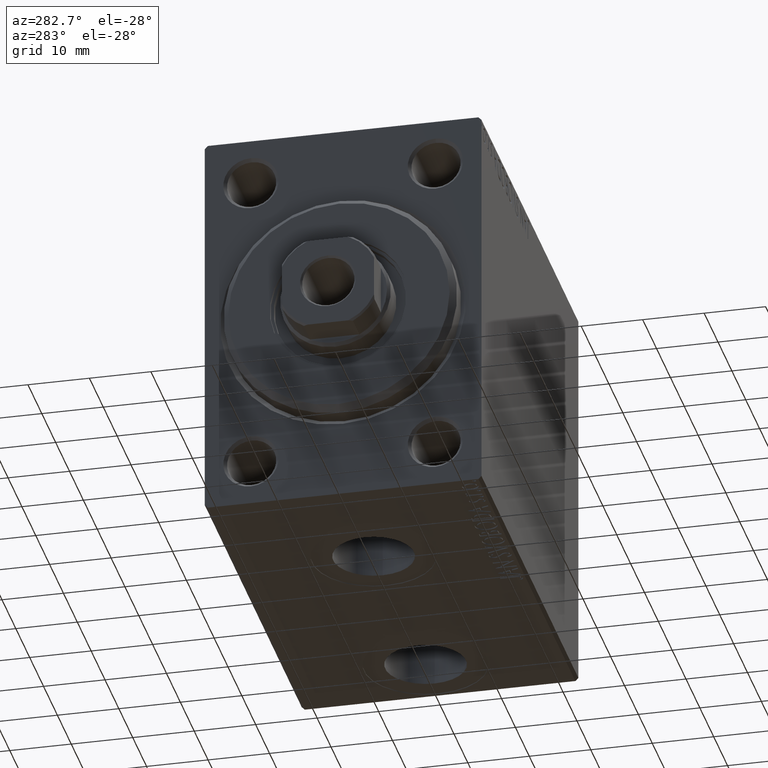
[diagram: clean part render]
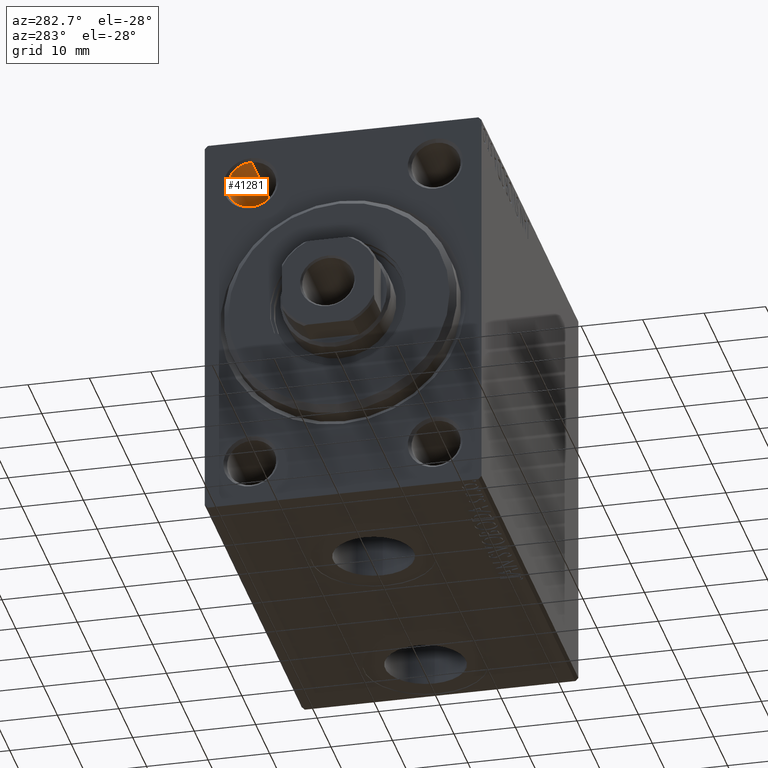
[diagram: same view with one face highlighted and labeled with its STEP entity id]
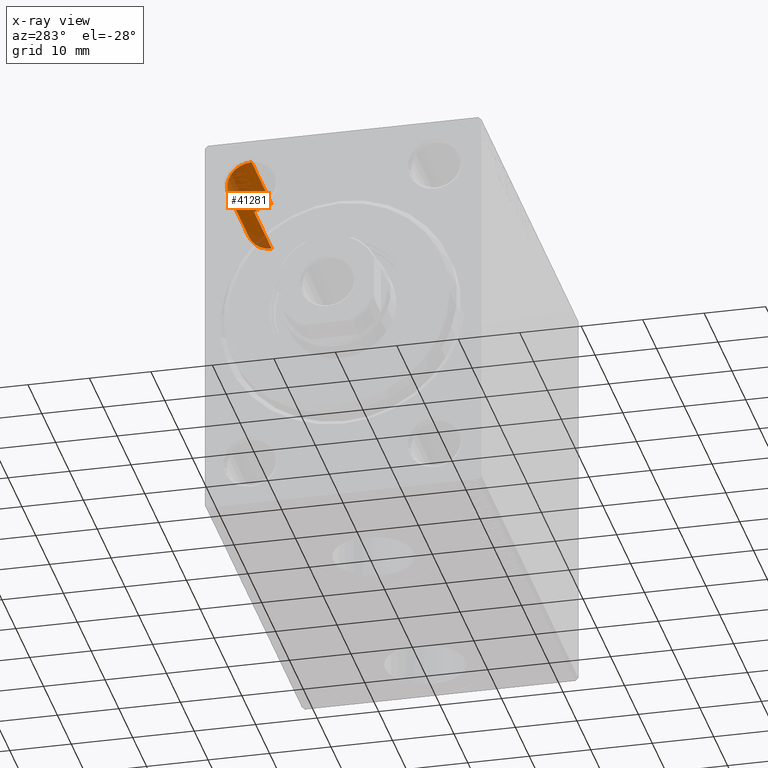
[diagram: x-ray of the same camera — body ghosted, the highlighted face saturated]
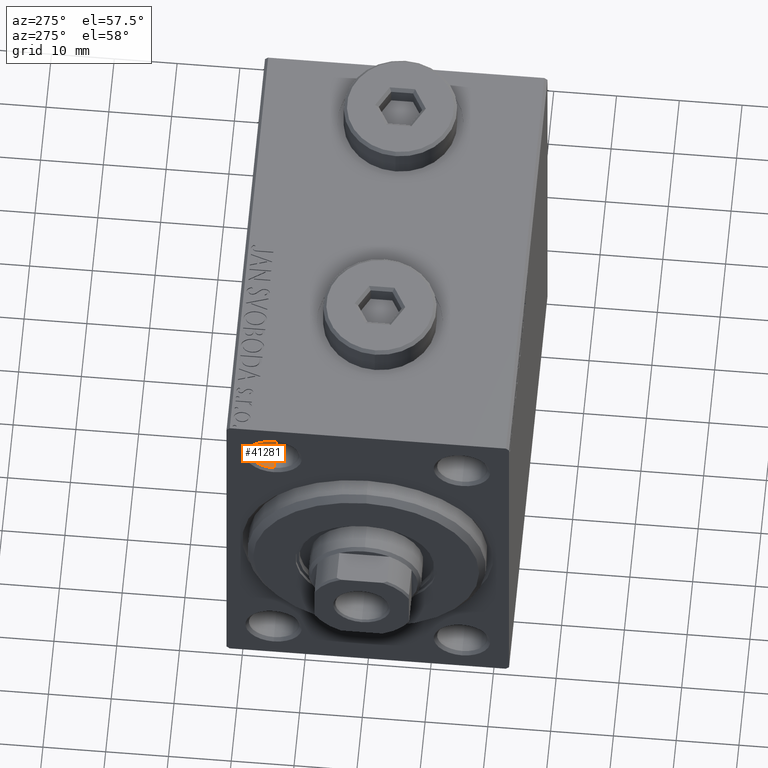
[diagram: same view with one face highlighted and labeled with its STEP entity id]
A machine part, auxiliary view. The second image highlights one B-rep face of the part: STEP entity #41281.
The next image is the same camera in x-ray: the body ghosted, the highlighted face saturated — about 14% of this face is hidden behind the body in this view.
A second angle (auxiliary view) of the same face is appended — the face is thin or edge-on in the first view.
In plain terms, the highlighted cylindrical surface (edge-blend (fillet) strip) has radius 4 mm, axis along (-1, -0, -0).
Its self-contained STEP definition (entity closure, byte-faithful):
#938 = AXIS2_PLACEMENT_3D ( 'NONE', #4537, #12347, #26420 ) ;
#1982 = VECTOR ( 'NONE', #25879, 1000.000000000000000 ) ;
#3493 = LINE ( 'NONE', #21678, #37005 ) ;
#3707 = DIRECTION ( 'NONE',  ( -1.000000000000000000, -0.000000000000000000, -0.000000000000000000 ) ) ;
#4050 = ORIENTED_EDGE ( 'NONE', *, *, #41769, .T. ) ;
#4244 = DIRECTION ( 'NONE',  ( 0.000000000000000000, 0.000000000000000000, 1.000000000000000000 ) ) ;
#4537 = CARTESIAN_POINT ( 'NONE',  ( 0.000000000000000000, 15.00000000000000178, 25.00000000000000000 ) ) ;
#6935 = EDGE_CURVE ( 'NONE', #12689, #44794, #10760, .T. ) ;
#10760 = LINE ( 'NONE', #36969, #1982 ) ;
#11608 = VERTEX_POINT ( 'NONE', #24445 ) ;
#12347 = DIRECTION ( 'NONE',  ( -1.000000000000000000, -0.000000000000000000, -0.000000000000000000 ) ) ;
#12689 = VERTEX_POINT ( 'NONE', #29794 ) ;
#14541 = VERTEX_POINT ( 'NONE', #38251 ) ;
#18743 = CARTESIAN_POINT ( 'NONE',  ( 0.4999999999999900080, 15.00000000000000178, 21.00000000000000000 ) ) ;
#21678 = CARTESIAN_POINT ( 'NONE',  ( 0.000000000000000000, 15.00000000000000178, 29.00000000000000000 ) ) ;
#21699 = AXIS2_PLACEMENT_3D ( 'NONE', #21890, #36875, #28811 ) ;
#21890 = CARTESIAN_POINT ( 'NONE',  ( 0.4999999999999900080, 15.00000000000000178, 25.00000000000000000 ) ) ;
#21940 = ORIENTED_EDGE ( 'NONE', *, *, #6935, .F. ) ;
#23896 = CIRCLE ( 'NONE', #21699, 4.000000000000000000 ) ;
#24445 = CARTESIAN_POINT ( 'NONE',  ( 0.4999999999999900080, 15.00000000000000178, 29.00000000000000000 ) ) ;
#24837 = EDGE_CURVE ( 'NONE', #11608, #44794, #23896, .T. ) ;
#25879 = DIRECTION ( 'NONE',  ( -1.000000000000000000, -0.000000000000000000, -0.000000000000000000 ) ) ;
#26420 = DIRECTION ( 'NONE',  ( 0.000000000000000000, 0.000000000000000000, 1.000000000000000000 ) ) ;
#28811 = DIRECTION ( 'NONE',  ( 0.000000000000000000, 0.000000000000000000, -1.000000000000000000 ) ) ;
#29794 = CARTESIAN_POINT ( 'NONE',  ( 15.00000000000000000, 15.00000000000000178, 21.00000000000000355 ) ) ;
#31200 = EDGE_CURVE ( 'NONE', #14541, #12689, #38773, .T. ) ;
#36520 = CARTESIAN_POINT ( 'NONE',  ( 15.00000000000000000, 15.00000000000000178, 25.00000000000000000 ) ) ;
#36875 = DIRECTION ( 'NONE',  ( -1.000000000000000000, 0.000000000000000000, 0.000000000000000000 ) ) ;
#36969 = CARTESIAN_POINT ( 'NONE',  ( 0.000000000000000000, 15.00000000000000178, 21.00000000000000000 ) ) ;
#37005 = VECTOR ( 'NONE', #3707, 1000.000000000000000 ) ;
#37287 = AXIS2_PLACEMENT_3D ( 'NONE', #36520, #40191, #4244 ) ;
#37451 = EDGE_LOOP ( 'NONE', ( #21940, #45020, #4050, #40895 ) ) ;
#38251 = CARTESIAN_POINT ( 'NONE',  ( 15.00000000000000000, 15.00000000000000178, 28.99999999999999645 ) ) ;
#38773 = CIRCLE ( 'NONE', #37287, 3.999999999999996447 ) ;
#40191 = DIRECTION ( 'NONE',  ( -1.000000000000000000, -0.000000000000000000, -0.000000000000000000 ) ) ;
#40895 = ORIENTED_EDGE ( 'NONE', *, *, #24837, .T. ) ;
#41281 = ADVANCED_FACE ( 'NONE', ( #43952 ), #43493, .F. ) ;
#41769 = EDGE_CURVE ( 'NONE', #14541, #11608, #3493, .T. ) ;
#43493 = CYLINDRICAL_SURFACE ( 'NONE', #938, 4.000000000000000000 ) ;
#43952 = FACE_OUTER_BOUND ( 'NONE', #37451, .T. ) ;
#44794 = VERTEX_POINT ( 'NONE', #18743 ) ;
#45020 = ORIENTED_EDGE ( 'NONE', *, *, #31200, .F. ) ;